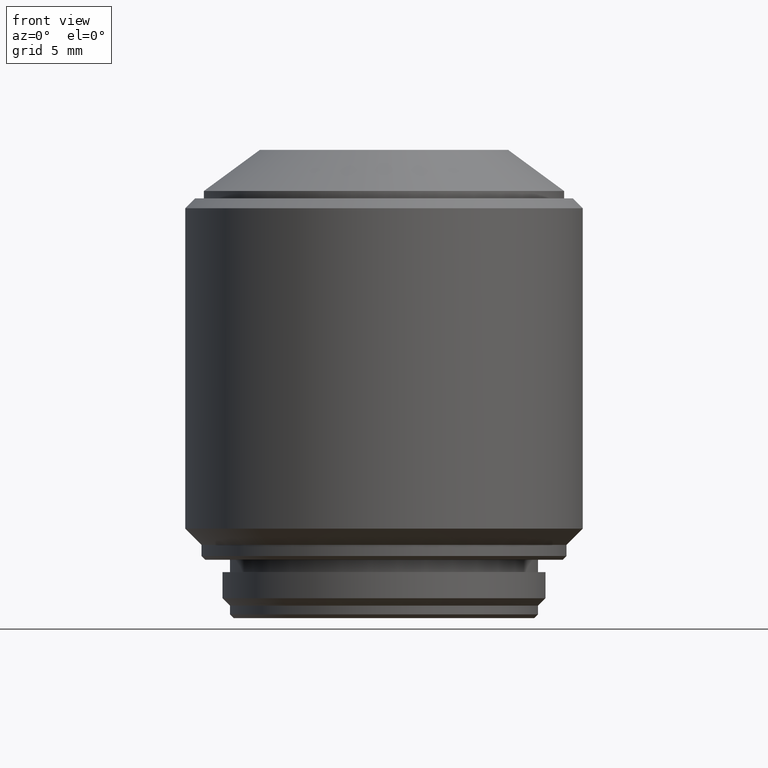
[diagram: clean part render]
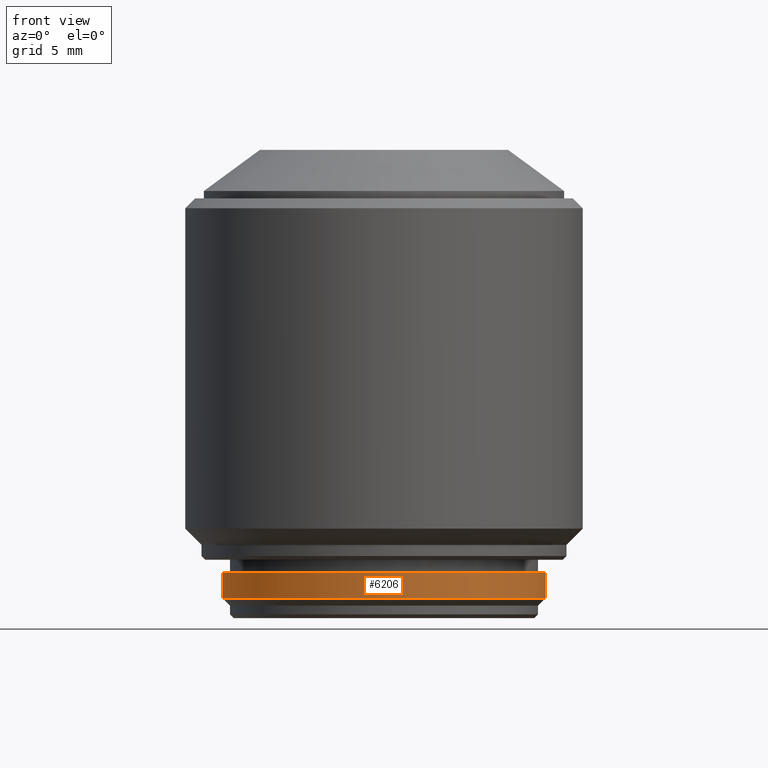
[diagram: same view with one face highlighted and labeled with its STEP entity id]
A machine part, front view. The second image highlights one B-rep face of the part: STEP entity #6206.
In plain terms, the highlighted cylindrical surface (partial cylindrical patch) has radius 13 mm, axis along (0, 0, -1).
Its self-contained STEP definition (entity closure, byte-faithful):
#37 = CARTESIAN_POINT ( 'NONE',  ( 0.000000000000000000, 0.000000000000000000, 1.600000000000000089 ) ) ;
#695 = EDGE_LOOP ( 'NONE', ( #8337, #2817, #5787, #23913 ) ) ;
#2115 = CYLINDRICAL_SURFACE ( 'NONE', #17461, 13.00000000000000000 ) ;
#2376 = FACE_OUTER_BOUND ( 'NONE', #695, .T. ) ;
#2424 = CARTESIAN_POINT ( 'NONE',  ( 13.00000000000000000, 1.592040838891559095E-15, 3.700000000000000178 ) ) ;
#2539 = CIRCLE ( 'NONE', #25388, 13.00000000000000000 ) ;
#2817 = ORIENTED_EDGE ( 'NONE', *, *, #18812, .F. ) ;
#3373 = VECTOR ( 'NONE', #18623, 1000.000000000000000 ) ;
#3506 = DIRECTION ( 'NONE',  ( 0.000000000000000000, 0.000000000000000000, 1.000000000000000000 ) ) ;
#4347 = DIRECTION ( 'NONE',  ( 0.000000000000000000, 0.000000000000000000, -1.000000000000000000 ) ) ;
#5434 = VERTEX_POINT ( 'NONE', #12702 ) ;
#5787 = ORIENTED_EDGE ( 'NONE', *, *, #17444, .T. ) ;
#6206 = ADVANCED_FACE ( 'NONE', ( #2376 ), #2115, .T. ) ;
#7693 = CIRCLE ( 'NONE', #17618, 13.00000000000000000 ) ;
#8337 = ORIENTED_EDGE ( 'NONE', *, *, #22689, .F. ) ;
#10303 = VERTEX_POINT ( 'NONE', #17518 ) ;
#10609 = DIRECTION ( 'NONE',  ( 0.000000000000000000, 0.000000000000000000, -1.000000000000000000 ) ) ;
#12358 = DIRECTION ( 'NONE',  ( -1.000000000000000000, 0.000000000000000000, 0.000000000000000000 ) ) ;
#12702 = CARTESIAN_POINT ( 'NONE',  ( 13.00000000000000000, 0.000000000000000000, 1.600000000000000089 ) ) ;
#14139 = CARTESIAN_POINT ( 'NONE',  ( 0.000000000000000000, 0.000000000000000000, 3.700000000000000178 ) ) ;
#14847 = VERTEX_POINT ( 'NONE', #2424 ) ;
#15012 = CARTESIAN_POINT ( 'NONE',  ( -13.00000000000000000, 0.000000000000000000, 4.700000000000000178 ) ) ;
#15919 = DIRECTION ( 'NONE',  ( -1.000000000000000000, 0.000000000000000000, 0.000000000000000000 ) ) ;
#16593 = CARTESIAN_POINT ( 'NONE',  ( 13.00000000000000000, 1.592040838891559095E-15, 4.700000000000000178 ) ) ;
#16896 = LINE ( 'NONE', #15012, #20590 ) ;
#17444 = EDGE_CURVE ( 'NONE', #25192, #10303, #16896, .T. ) ;
#17461 = AXIS2_PLACEMENT_3D ( 'NONE', #20999, #10609, #12358 ) ;
#17518 = CARTESIAN_POINT ( 'NONE',  ( -13.00000000000000000, 1.592040838891559095E-15, 1.600000000000000089 ) ) ;
#17618 = AXIS2_PLACEMENT_3D ( 'NONE', #14139, #3506, #15919 ) ;
#18623 = DIRECTION ( 'NONE',  ( 0.000000000000000000, 0.000000000000000000, -1.000000000000000000 ) ) ;
#18812 = EDGE_CURVE ( 'NONE', #25192, #14847, #7693, .T. ) ;
#19636 = EDGE_CURVE ( 'NONE', #10303, #5434, #2539, .T. ) ;
#20590 = VECTOR ( 'NONE', #4347, 1000.000000000000000 ) ;
#20999 = CARTESIAN_POINT ( 'NONE',  ( 0.000000000000000000, 0.000000000000000000, 4.700000000000000178 ) ) ;
#22467 = CARTESIAN_POINT ( 'NONE',  ( -13.00000000000000000, 0.000000000000000000, 3.700000000000000178 ) ) ;
#22524 = LINE ( 'NONE', #16593, #3373 ) ;
#22689 = EDGE_CURVE ( 'NONE', #14847, #5434, #22524, .T. ) ;
#22953 = DIRECTION ( 'NONE',  ( -1.000000000000000000, 0.000000000000000000, 0.000000000000000000 ) ) ;
#23913 = ORIENTED_EDGE ( 'NONE', *, *, #19636, .T. ) ;
#24701 = DIRECTION ( 'NONE',  ( 0.000000000000000000, 0.000000000000000000, 1.000000000000000000 ) ) ;
#25192 = VERTEX_POINT ( 'NONE', #22467 ) ;
#25388 = AXIS2_PLACEMENT_3D ( 'NONE', #37, #24701, #22953 ) ;